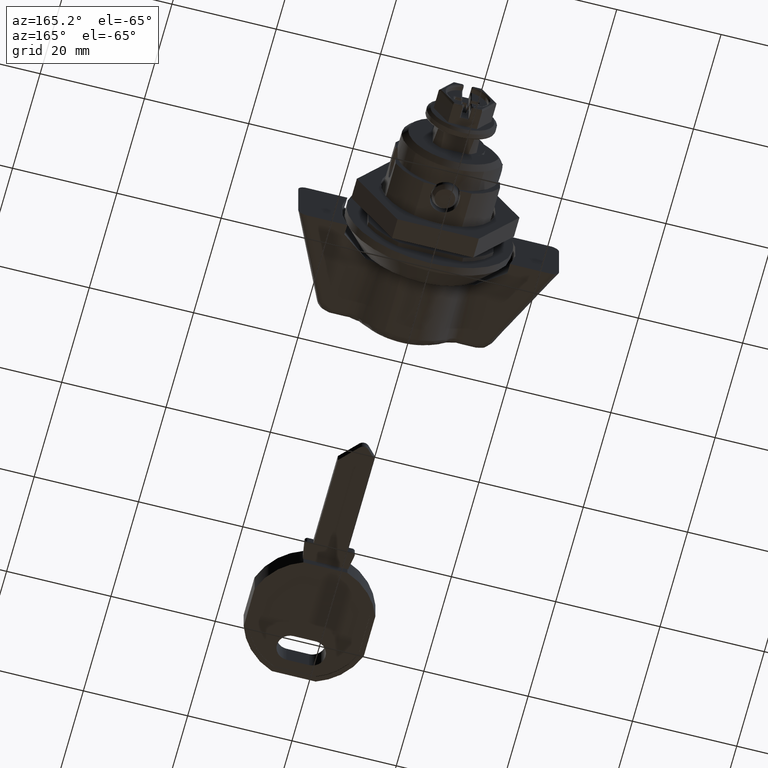
[diagram: clean part render]
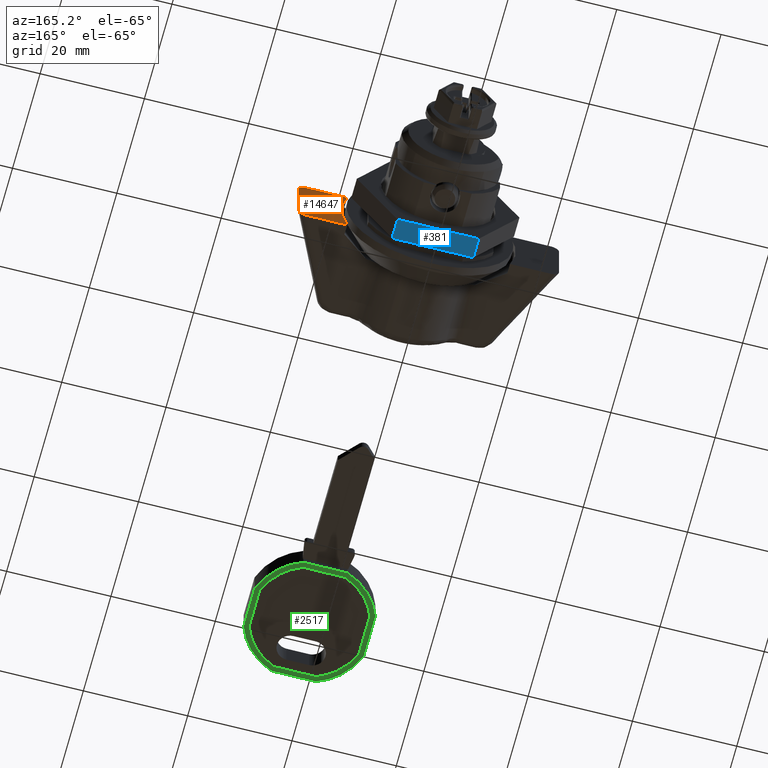
[diagram: same view with three faces highlighted in distinct colors, each labeled with its STEP entity id]
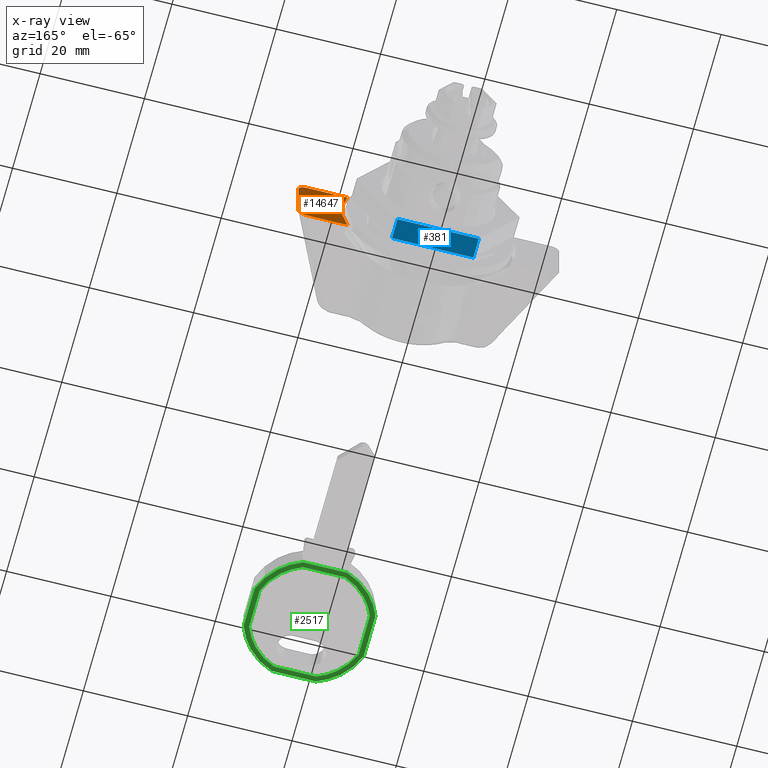
[diagram: x-ray of the same camera — body ghosted, the three highlighted faces saturated]
A machine part, auxiliary view with three faces highlighted in distinct colors.
The next image is the same camera in x-ray (body ghosted, the three faces saturated) — at least one of them is partly hidden behind the body in this view.
Their STEP definitions:

[orange] entity #14647 — the highlighted face is a freeform B-spline surface patch.
#13357=CARTESIAN_POINT('',(-0.799999656521777,-23.378771852575049,6.000000284984680));
#13358=VERTEX_POINT('',#13357);
#13359=CARTESIAN_POINT('',(-0.799999656521777,-25.000001187436599,4.531421205880021));
#13360=VERTEX_POINT('',#13359);
#13361=CARTESIAN_POINT('',(-0.799999656521774,-23.378771852575049,6.000000284984678));
#13362=CARTESIAN_POINT('',(-0.799999656521774,-25.000001187436904,6.000000284984712));
#13363=CARTESIAN_POINT('',(-0.799999656521777,-25.000001187436599,4.531421205880021));
#13371=(BOUNDED_CURVE()B_SPLINE_CURVE(2,(#13361,#13362,#13363),.UNSPECIFIED.,.F.,.U.)CURVE()GEOMETRIC_REPRESENTATION_ITEM()QUASI_UNIFORM_CURVE()RATIONAL_B_SPLINE_CURVE((1.0,0.714942793096685,1.0))REPRESENTATION_ITEM(''));
#13372=EDGE_CURVE('',#13358,#13360,#13371,.T.);
#13419=CARTESIAN_POINT('',(-0.799999656521777,-23.378771852575049,-6.000000284984710));
#13420=VERTEX_POINT('',#13419);
#13426=CARTESIAN_POINT('',(-0.799999656521777,-25.000001187436599,-4.531421205880040));
#13427=VERTEX_POINT('',#13426);
#13428=CARTESIAN_POINT('',(-0.799999656521777,-25.000001187436631,-4.531421205880044));
#13429=CARTESIAN_POINT('',(-0.799999656521777,-25.000001187436634,-6.000000284984796));
#13430=CARTESIAN_POINT('',(-0.799999656521777,-23.378771852574989,-6.000000284984703));
#13438=(BOUNDED_CURVE()B_SPLINE_CURVE(2,(#13428,#13429,#13430),.UNSPECIFIED.,.F.,.U.)CURVE()GEOMETRIC_REPRESENTATION_ITEM()QUASI_UNIFORM_CURVE()RATIONAL_B_SPLINE_CURVE((1.0,0.714942793096730,1.0))REPRESENTATION_ITEM(''));
#13439=EDGE_CURVE('',#13427,#13420,#13438,.T.);
#14548=CARTESIAN_POINT('',(-0.799999656528293,-15.584928507381351,6.000000284984340));
#14549=VERTEX_POINT('',#14548);
#14563=CARTESIAN_POINT('',(-0.799999656528279,-15.584928507381351,-6.000000284984360));
#14564=VERTEX_POINT('',#14563);
#14565=CARTESIAN_POINT('',(-0.799999656528286,-15.584928507381340,-6.000000284984368));
#14566=CARTESIAN_POINT('',(-0.799999656528286,-17.894852701307666,-1.821460E-014));
#14567=CARTESIAN_POINT('',(-0.799999656528286,-15.584928507381351,6.000000284984334));
#14575=(BOUNDED_CURVE()B_SPLINE_CURVE(2,(#14565,#14566,#14567),.UNSPECIFIED.,.F.,.U.)CURVE()GEOMETRIC_REPRESENTATION_ITEM()QUASI_UNIFORM_CURVE()RATIONAL_B_SPLINE_CURVE((1.0,0.933229251939003,1.0))REPRESENTATION_ITEM(''));
#14576=EDGE_CURVE('',#14564,#14549,#14575,.T.);
#14602=CARTESIAN_POINT('',(-0.799999656521777,-25.000001187436599,-4.531421205880040));
#14603=CARTESIAN_POINT('',(-0.799999656521777,-25.000001187436599,4.531421205880021));
#14604=QUASI_UNIFORM_CURVE('',1,(#14602,#14603),.UNSPECIFIED.,.F.,.U.);
#14605=EDGE_CURVE('',#13427,#13360,#14604,.T.);
#14616=CARTESIAN_POINT('',(-0.799999656528279,-15.584928507381351,-6.000000284984360));
#14617=CARTESIAN_POINT('',(-0.799999656521777,-23.378771852575049,-6.000000284984710));
#14618=QUASI_UNIFORM_CURVE('',1,(#14616,#14617),.UNSPECIFIED.,.F.,.U.);
#14619=EDGE_CURVE('',#14564,#13420,#14618,.T.);
#14630=CARTESIAN_POINT('',(-0.799999656521777,-25.470284844994818,-6.599400515491190));
#14631=CARTESIAN_POINT('',(-0.799999656521777,-25.470284844994818,6.599400622779526));
#14632=CARTESIAN_POINT('',(-0.799999656521777,-15.114645354886990,-6.599400515491190));
#14633=CARTESIAN_POINT('',(-0.799999656521777,-15.114645354886990,6.599400622779526));
#14634=B_SPLINE_SURFACE_WITH_KNOTS('',1,1,((#14630,#14632),(#14631,#14633)),.UNSPECIFIED.,.F.,.F.,.U.,(2,2),(2,2),(0.0,13.198801138270721),(0.0,10.355639490107830),.UNSPECIFIED.);
#14635=ORIENTED_EDGE('',*,*,#14605,.F.);
#14636=ORIENTED_EDGE('',*,*,#13439,.T.);
#14637=ORIENTED_EDGE('',*,*,#14619,.F.);
#14638=ORIENTED_EDGE('',*,*,#14576,.T.);
#14639=CARTESIAN_POINT('',(-0.799999656521777,-23.378771852575049,6.000000284984680));
#14640=CARTESIAN_POINT('',(-0.799999656528293,-15.584928507381351,6.000000284984340));
#14641=QUASI_UNIFORM_CURVE('',1,(#14639,#14640),.UNSPECIFIED.,.F.,.U.);
#14642=EDGE_CURVE('',#13358,#14549,#14641,.T.);
#14643=ORIENTED_EDGE('',*,*,#14642,.F.);
#14644=ORIENTED_EDGE('',*,*,#13372,.T.);
#14645=EDGE_LOOP('',(#14635,#14636,#14637,#14638,#14643,#14644));
#14646=FACE_OUTER_BOUND('',#14645,.T.);
#14647=ADVANCED_FACE('',(#14646),#14634,.F.);

[blue] entity #381 — the highlighted face is a freeform B-spline surface patch.
#262=CARTESIAN_POINT('',(2.000000094994905,7.794229004265840,-13.500000641215600));
#263=VERTEX_POINT('',#262);
#269=CARTESIAN_POINT('',(2.000000094994905,-7.794229004265900,-13.500000641215699));
#270=VERTEX_POINT('',#269);
#271=CARTESIAN_POINT('',(2.000000094994905,7.794229004265840,-13.500000641215600));
#272=CARTESIAN_POINT('',(2.000000094994905,-7.794229004265900,-13.500000641215699));
#273=QUASI_UNIFORM_CURVE('',1,(#271,#272),.UNSPECIFIED.,.F.,.U.);
#274=EDGE_CURVE('',#263,#270,#273,.T.);
#304=CARTESIAN_POINT('',(6.000000284984710,-7.794229004265900,-13.500000641215699));
#305=VERTEX_POINT('',#304);
#311=CARTESIAN_POINT('',(6.000000284984710,7.794229004265840,-13.500000641215600));
#312=VERTEX_POINT('',#311);
#313=CARTESIAN_POINT('',(6.000000284984710,7.794229004265840,-13.500000641215600));
#314=CARTESIAN_POINT('',(6.000000284984710,-7.794229004265900,-13.500000641215699));
#315=QUASI_UNIFORM_CURVE('',1,(#313,#314),.UNSPECIFIED.,.F.,.U.);
#316=EDGE_CURVE('',#312,#305,#315,.T.);
#352=CARTESIAN_POINT('',(6.000000284984710,-7.794229004265900,-13.500000641215699));
#353=CARTESIAN_POINT('',(2.000000094994905,-7.794229004265900,-13.500000641215699));
#354=QUASI_UNIFORM_CURVE('',1,(#352,#353),.UNSPECIFIED.,.F.,.U.);
#355=EDGE_CURVE('',#305,#270,#354,.T.);
#366=CARTESIAN_POINT('',(1.800199980610272,-8.572872597911896,-13.500000641215600));
#367=CARTESIAN_POINT('',(1.800199980610272,8.572872876655186,-13.500000641215600));
#368=CARTESIAN_POINT('',(6.199800399369344,-8.572872597911896,-13.500000641215600));
#369=CARTESIAN_POINT('',(6.199800399369344,8.572872876655186,-13.500000641215600));
#370=B_SPLINE_SURFACE_WITH_KNOTS('',1,1,((#366,#368),(#367,#369)),.UNSPECIFIED.,.F.,.F.,.U.,(2,2),(2,2),(0.0,17.145745474567079),(0.0,4.399600418759072),.UNSPECIFIED.);
#371=ORIENTED_EDGE('',*,*,#274,.F.);
#372=CARTESIAN_POINT('',(6.000000284984710,7.794229004265840,-13.500000641215600));
#373=CARTESIAN_POINT('',(2.000000094994905,7.794229004265840,-13.500000641215600));
#374=QUASI_UNIFORM_CURVE('',1,(#372,#373),.UNSPECIFIED.,.F.,.U.);
#375=EDGE_CURVE('',#312,#263,#374,.T.);
#376=ORIENTED_EDGE('',*,*,#375,.F.);
#377=ORIENTED_EDGE('',*,*,#316,.T.);
#378=ORIENTED_EDGE('',*,*,#355,.T.);
#379=EDGE_LOOP('',(#371,#376,#377,#378));
#380=FACE_OUTER_BOUND('',#379,.T.);
#381=ADVANCED_FACE('',(#380),#370,.T.);

[green] entity #2517 — the highlighted face is a freeform B-spline surface patch.
#1135=CARTESIAN_POINT('',(-52.160989396904000,2.835446594893880,-2.499999999999945));
#1136=VERTEX_POINT('',#1135);
#1137=CARTESIAN_POINT('',(-58.622116446291997,9.296573529506059,-2.499999999999945));
#1138=VERTEX_POINT('',#1137);
#1139=CARTESIAN_POINT('',(-52.160989396903943,2.835446594893898,-2.499999999999945));
#1140=CARTESIAN_POINT('',(-53.955879122310563,7.501683886990787,-2.499999999999945));
#1141=CARTESIAN_POINT('',(-58.622116446291990,9.296573529506052,-2.499999999999945));
#1149=(BOUNDED_CURVE()B_SPLINE_CURVE(2,(#1139,#1140,#1141),.UNSPECIFIED.,.F.,.U.)CURVE()GEOMETRIC_REPRESENTATION_ITEM()QUASI_UNIFORM_CURVE()RATIONAL_B_SPLINE_CURVE((1.0,0.913825425284822,1.0))REPRESENTATION_ITEM(''));
#1150=EDGE_CURVE('',#1136,#1138,#1149,.T.);
#1187=CARTESIAN_POINT('',(-52.160989396904000,-5.242300839961760,-2.499999999999945));
#1188=VERTEX_POINT('',#1187);
#1189=CARTESIAN_POINT('',(-52.160989396904000,-5.242300839961760,-2.499999999999945));
#1190=CARTESIAN_POINT('',(-52.160989396904000,2.835446594893880,-2.499999999999945));
#1191=QUASI_UNIFORM_CURVE('',1,(#1189,#1190),.UNSPECIFIED.,.F.,.U.);
#1192=EDGE_CURVE('',#1188,#1136,#1191,.T.);
#1224=CARTESIAN_POINT('',(-58.873145960881502,-11.796573529506020,-2.499999999999945));
#1225=VERTEX_POINT('',#1224);
#1226=CARTESIAN_POINT('',(-58.873145960881480,-11.796573529506070,-2.499999999999945));
#1227=CARTESIAN_POINT('',(-54.013744689954912,-10.058973262333234,-2.499999999999945));
#1228=CARTESIAN_POINT('',(-52.160989396903993,-5.242300839961763,-2.499999999999945));
#1236=(BOUNDED_CURVE()B_SPLINE_CURVE(2,(#1226,#1227,#1228),.UNSPECIFIED.,.F.,.U.)CURVE()GEOMETRIC_REPRESENTATION_ITEM()QUASI_UNIFORM_CURVE()RATIONAL_B_SPLINE_CURVE((1.0,0.908927978377635,1.0))REPRESENTATION_ITEM(''));
#1237=EDGE_CURVE('',#1225,#1188,#1236,.T.);
#1268=CARTESIAN_POINT('',(-66.448833993512707,-11.796573529506100,-2.499999999999945));
#1269=VERTEX_POINT('',#1268);
#1270=CARTESIAN_POINT('',(-66.448833993512707,-11.796573529506100,-2.499999999999945));
#1271=CARTESIAN_POINT('',(-58.873145960881502,-11.796573529506020,-2.499999999999945));
#1272=QUASI_UNIFORM_CURVE('',1,(#1270,#1271),.UNSPECIFIED.,.F.,.U.);
#1273=EDGE_CURVE('',#1269,#1225,#1272,.T.);
#1305=CARTESIAN_POINT('',(-73.160990662055198,-5.242300568120299,-2.499999999999945));
#1306=VERTEX_POINT('',#1305);
#1307=CARTESIAN_POINT('',(-73.160990662055312,-5.242300568120341,-2.499999999999945));
#1308=CARTESIAN_POINT('',(-71.308235430421846,-10.058973202982084,-2.499999999999945));
#1309=CARTESIAN_POINT('',(-66.448833993512721,-11.796573529506119,-2.499999999999945));
#1317=(BOUNDED_CURVE()B_SPLINE_CURVE(2,(#1307,#1308,#1309),.UNSPECIFIED.,.F.,.U.)CURVE()GEOMETRIC_REPRESENTATION_ITEM()QUASI_UNIFORM_CURVE()RATIONAL_B_SPLINE_CURVE((1.0,0.908927972980247,1.0))REPRESENTATION_ITEM(''));
#1318=EDGE_CURVE('',#1306,#1269,#1317,.T.);
#1349=CARTESIAN_POINT('',(-73.160990662055099,2.835446323052715,-2.499999999999945));
#1350=VERTEX_POINT('',#1349);
#1351=CARTESIAN_POINT('',(-73.160990662055099,2.835446323052715,-2.499999999999945));
#1352=CARTESIAN_POINT('',(-73.160990662055198,-5.242300568120299,-2.499999999999945));
#1353=QUASI_UNIFORM_CURVE('',1,(#1351,#1352),.UNSPECIFIED.,.F.,.U.);
#1354=EDGE_CURVE('',#1350,#1306,#1353,.T.);
#1386=CARTESIAN_POINT('',(-66.699863508102197,9.296573529506000,-2.499999999999945));
#1387=VERTEX_POINT('',#1386);
#1388=CARTESIAN_POINT('',(-66.699863508102197,9.296573529505995,-2.499999999999945));
#1389=CARTESIAN_POINT('',(-71.366100994847727,7.501683824382766,-2.499999999999945));
#1390=CARTESIAN_POINT('',(-73.160990662055141,2.835446323052735,-2.499999999999945));
#1398=(BOUNDED_CURVE()B_SPLINE_CURVE(2,(#1388,#1389,#1390),.UNSPECIFIED.,.F.,.U.)CURVE()GEOMETRIC_REPRESENTATION_ITEM()QUASI_UNIFORM_CURVE()RATIONAL_B_SPLINE_CURVE((1.0,0.913825420027838,1.0))REPRESENTATION_ITEM(''));
#1399=EDGE_CURVE('',#1387,#1350,#1398,.T.);
#1430=CARTESIAN_POINT('',(-58.622116446291997,9.296573529506059,-2.499999999999945));
#1431=CARTESIAN_POINT('',(-66.699863508102197,9.296573529506000,-2.499999999999945));
#1432=QUASI_UNIFORM_CURVE('',1,(#1430,#1431),.UNSPECIFIED.,.F.,.U.);
#1433=EDGE_CURVE('',#1138,#1387,#1432,.T.);
#2412=CARTESIAN_POINT('',(-75.309837956045087,11.450076397126679,-2.500000000000000));
#2413=CARTESIAN_POINT('',(-50.012137167649257,11.450076397126679,-2.500000000000000));
#2414=CARTESIAN_POINT('',(-75.309837956045087,-13.950076810064330,-2.500000000000000));
#2415=CARTESIAN_POINT('',(-50.012137167649257,-13.950076810064330,-2.500000000000000));
#2416=B_SPLINE_SURFACE_WITH_KNOTS('',1,1,((#2412,#2414),(#2413,#2415)),.UNSPECIFIED.,.F.,.F.,.U.,(2,2),(2,2),(0.0,25.297700788395819),(0.0,25.400153207191011),.UNSPECIFIED.);
#2417=CARTESIAN_POINT('',(-74.160990662055312,-5.423912699269721,-2.499999999999945));
#2418=VERTEX_POINT('',#2417);
#2419=CARTESIAN_POINT('',(-74.160990662055099,3.017058454202035,-2.499999999999945));
#2420=VERTEX_POINT('',#2419);
#2421=CARTESIAN_POINT('',(-74.160990662055312,-5.423912699269721,-2.499999999999945));
#2422=CARTESIAN_POINT('',(-74.160990662055099,3.017058454202035,-2.499999999999945));
#2423=QUASI_UNIFORM_CURVE('',1,(#2421,#2422),.UNSPECIFIED.,.F.,.U.);
#2424=EDGE_CURVE('',#2418,#2420,#2423,.T.);
#2425=ORIENTED_EDGE('',*,*,#2424,.T.);
#2426=CARTESIAN_POINT('',(-66.881475643356097,10.296573529505981,-2.499999999999945));
#2427=VERTEX_POINT('',#2426);
#2428=CARTESIAN_POINT('',(-66.881475643356097,10.296573529505990,-2.499999999999945));
#2429=CARTESIAN_POINT('',(-72.206656190783235,8.342239016825918,-2.499999999999945));
#2430=CARTESIAN_POINT('',(-74.160990662055141,3.017058454202056,-2.499999999999945));
#2438=(BOUNDED_CURVE()B_SPLINE_CURVE(2,(#2428,#2429,#2430),.UNSPECIFIED.,.F.,.U.)CURVE()GEOMETRIC_REPRESENTATION_ITEM()QUASI_UNIFORM_CURVE()RATIONAL_B_SPLINE_CURVE((1.0,0.907433627032765,1.0))REPRESENTATION_ITEM(''));
#2439=EDGE_CURVE('',#2427,#2420,#2438,.T.);
#2440=ORIENTED_EDGE('',*,*,#2439,.F.);
#2441=CARTESIAN_POINT('',(-58.440504311038097,10.296573529506080,-2.499999999999945));
#2442=VERTEX_POINT('',#2441);
#2443=CARTESIAN_POINT('',(-66.881475643356097,10.296573529505981,-2.499999999999945));
#2444=CARTESIAN_POINT('',(-58.440504311038097,10.296573529506080,-2.499999999999945));
#2445=QUASI_UNIFORM_CURVE('',1,(#2443,#2444),.UNSPECIFIED.,.F.,.U.);
#2446=EDGE_CURVE('',#2427,#2442,#2445,.T.);
#2447=ORIENTED_EDGE('',*,*,#2446,.T.);
#2448=CARTESIAN_POINT('',(-51.160989396903901,3.017058739121100,-2.499999999999945));
#2449=VERTEX_POINT('',#2448);
#2450=CARTESIAN_POINT('',(-51.160989396903922,3.017058739121093,-2.499999999999945));
#2451=CARTESIAN_POINT('',(-53.115323936617152,8.342239080319045,-2.499999999999946));
#2452=CARTESIAN_POINT('',(-58.440504311038119,10.296573529506061,-2.499999999999945));
#2460=(BOUNDED_CURVE()B_SPLINE_CURVE(2,(#2450,#2451,#2452),.UNSPECIFIED.,.F.,.U.)CURVE()GEOMETRIC_REPRESENTATION_ITEM()QUASI_UNIFORM_CURVE()RATIONAL_B_SPLINE_CURVE((1.0,0.907433632238054,1.0))REPRESENTATION_ITEM(''));
#2461=EDGE_CURVE('',#2449,#2442,#2460,.T.);
#2462=ORIENTED_EDGE('',*,*,#2461,.F.);
#2463=CARTESIAN_POINT('',(-51.160989396904000,-5.423912984189120,-2.499999999999945));
#2464=VERTEX_POINT('',#2463);
#2465=CARTESIAN_POINT('',(-51.160989396903901,3.017058739121100,-2.499999999999945));
#2466=CARTESIAN_POINT('',(-51.160989396904000,-5.423912984189120,-2.499999999999945));
#2467=QUASI_UNIFORM_CURVE('',1,(#2465,#2466),.UNSPECIFIED.,.F.,.U.);
#2468=EDGE_CURVE('',#2449,#2464,#2467,.T.);
#2469=ORIENTED_EDGE('',*,*,#2468,.T.);
#2470=CARTESIAN_POINT('',(-58.703532378980697,-12.796573529506080,-2.499999999999945));
#2471=VERTEX_POINT('',#2470);
#2472=CARTESIAN_POINT('',(-58.703532378980690,-12.796573529506089,-2.499999999999945));
#2473=CARTESIAN_POINT('',(-53.174011799096533,-10.909006300975605,-2.499999999999945));
#2474=CARTESIAN_POINT('',(-51.160989396904029,-5.423912984189113,-2.499999999999945));
#2482=(BOUNDED_CURVE()B_SPLINE_CURVE(2,(#2472,#2473,#2474),.UNSPECIFIED.,.F.,.U.)CURVE()GEOMETRIC_REPRESENTATION_ITEM()QUASI_UNIFORM_CURVE()RATIONAL_B_SPLINE_CURVE((1.0,0.902589114379214,1.0))REPRESENTATION_ITEM(''));
#2483=EDGE_CURVE('',#2471,#2464,#2482,.T.);
#2484=ORIENTED_EDGE('',*,*,#2483,.F.);
#2485=CARTESIAN_POINT('',(-66.618447575413597,-12.796573529506020,-2.499999999999945));
#2486=VERTEX_POINT('',#2485);
#2487=CARTESIAN_POINT('',(-58.703532378980697,-12.796573529506080,-2.499999999999945));
#2488=CARTESIAN_POINT('',(-66.618447575413597,-12.796573529506020,-2.499999999999945));
#2489=QUASI_UNIFORM_CURVE('',1,(#2487,#2488),.UNSPECIFIED.,.F.,.U.);
#2490=EDGE_CURVE('',#2471,#2486,#2489,.T.);
#2491=ORIENTED_EDGE('',*,*,#2490,.T.);
#2492=CARTESIAN_POINT('',(-74.160990662055283,-5.423912699269708,-2.499999999999945));
#2493=CARTESIAN_POINT('',(-72.147968331582717,-10.909006240798606,-2.499999999999945));
#2494=CARTESIAN_POINT('',(-66.618447575413626,-12.796573529506089,-2.499999999999945));
#2502=(BOUNDED_CURVE()B_SPLINE_CURVE(2,(#2492,#2493,#2494),.UNSPECIFIED.,.F.,.U.)CURVE()GEOMETRIC_REPRESENTATION_ITEM()QUASI_UNIFORM_CURVE()RATIONAL_B_SPLINE_CURVE((1.0,0.902589109046230,1.0))REPRESENTATION_ITEM(''));
#2503=EDGE_CURVE('',#2418,#2486,#2502,.T.);
#2504=ORIENTED_EDGE('',*,*,#2503,.F.);
#2505=EDGE_LOOP('',(#2425,#2440,#2447,#2462,#2469,#2484,#2491,#2504));
#2506=FACE_OUTER_BOUND('',#2505,.T.);
#2507=ORIENTED_EDGE('',*,*,#1150,.T.);
#2508=ORIENTED_EDGE('',*,*,#1433,.T.);
#2509=ORIENTED_EDGE('',*,*,#1399,.T.);
#2510=ORIENTED_EDGE('',*,*,#1354,.T.);
#2511=ORIENTED_EDGE('',*,*,#1318,.T.);
#2512=ORIENTED_EDGE('',*,*,#1273,.T.);
#2513=ORIENTED_EDGE('',*,*,#1237,.T.);
#2514=ORIENTED_EDGE('',*,*,#1192,.T.);
#2515=EDGE_LOOP('',(#2507,#2508,#2509,#2510,#2511,#2512,#2513,#2514));
#2516=FACE_BOUND('',#2515,.T.);
#2517=ADVANCED_FACE('',(#2506,#2516),#2416,.T.);